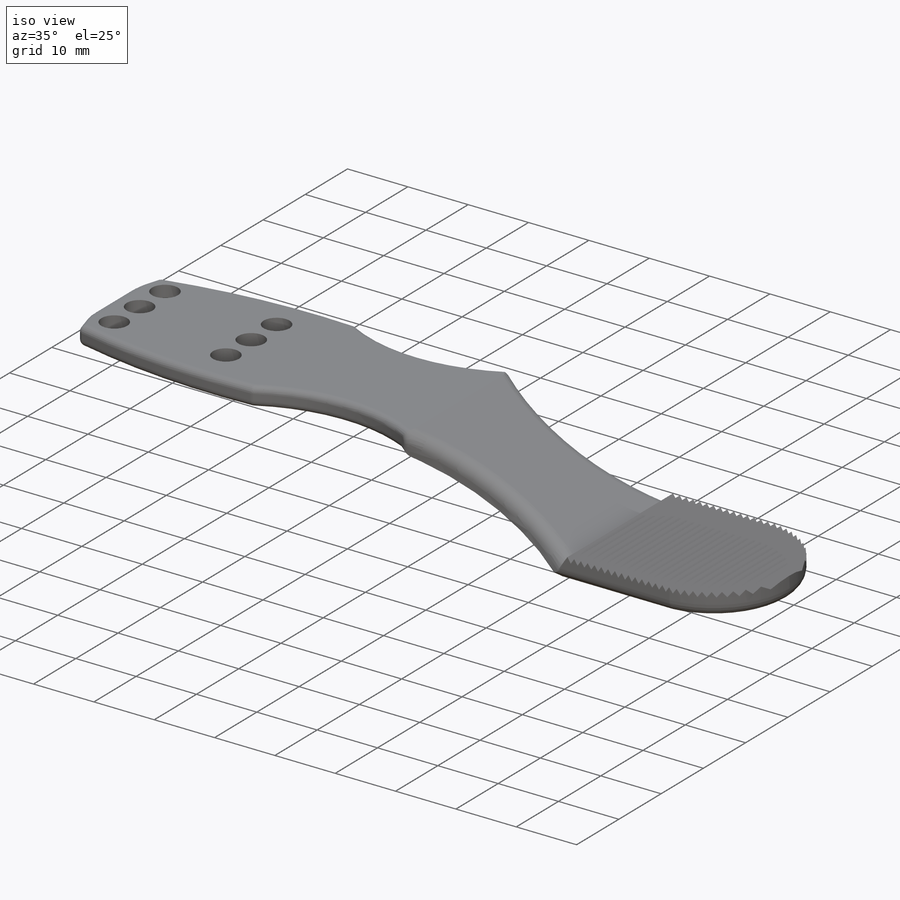
[diagram: iso view]
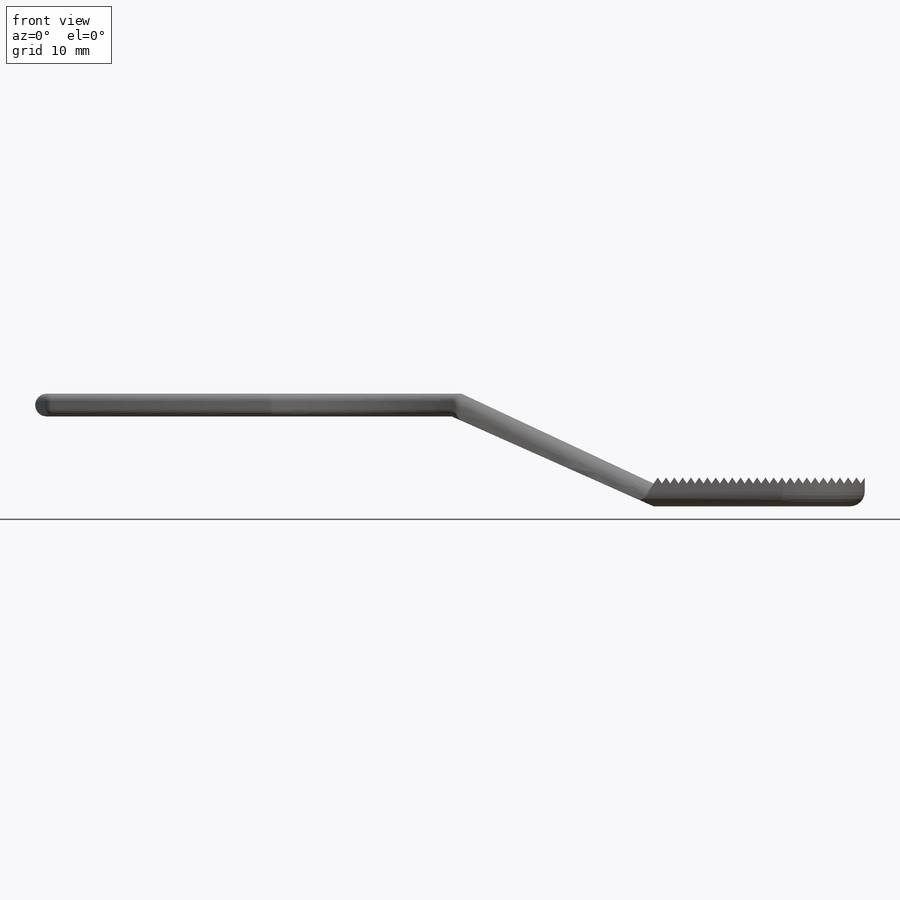
[diagram: front view]
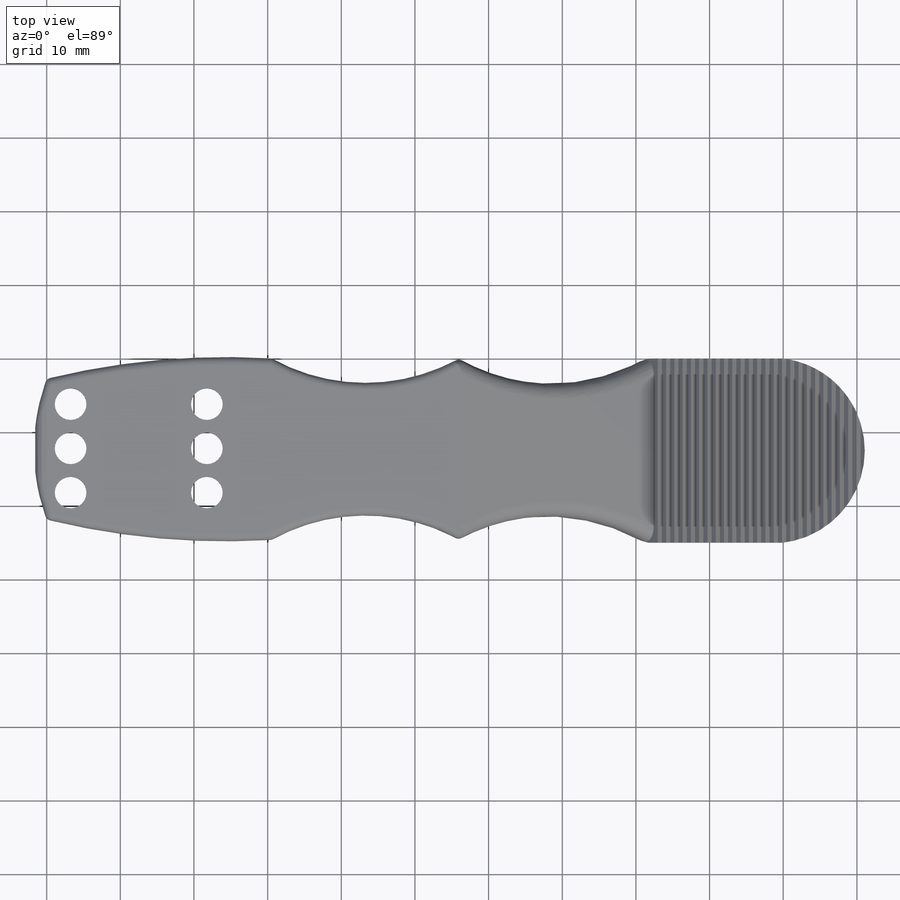
[diagram: top view]
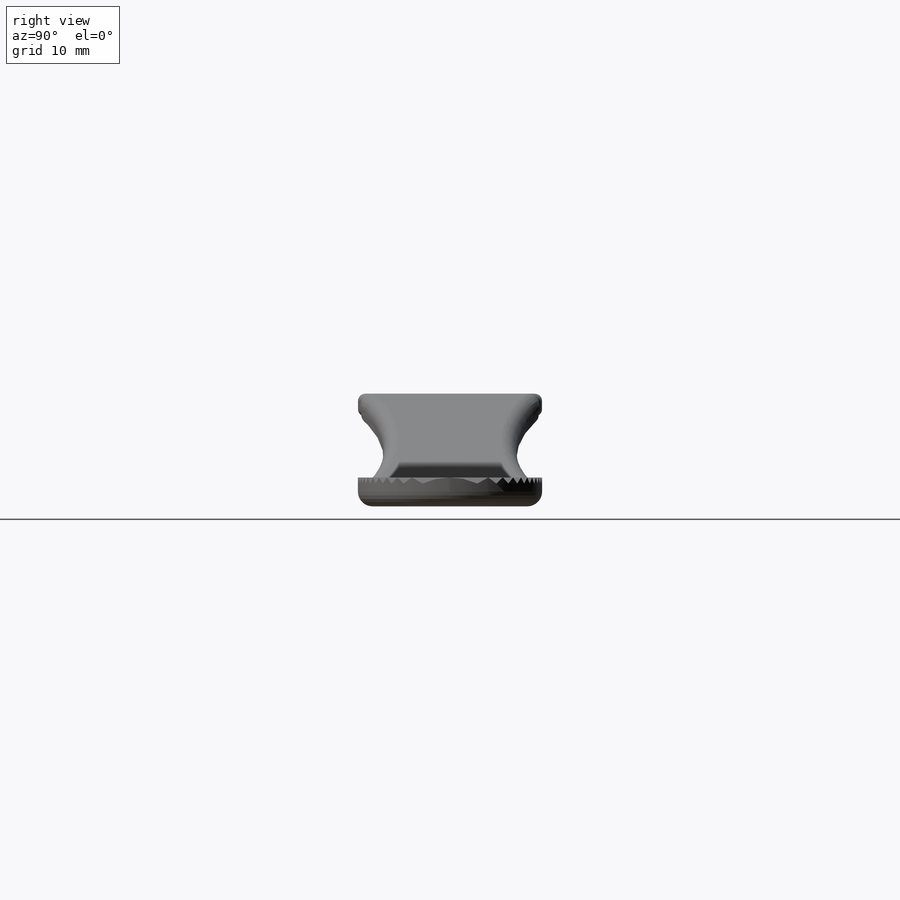
[diagram: right view]
SOLIDWORKS PART (.sldprt)
format: sldprt  version: not decoded by parser v0  size: 665,600 bytes
history: native  units: mm
features: sketch x7, fillet x7, cut_extrude x5, plane x3, extrude x2, material x1 (+9 scaffold rows collapsed)
feature tree (34):
  scaffold x9  (default folders/planes/origin — collapsed)
  material  "Material <sin especificar>"
  plane  "Alzado"
  plane  "Planta"
  plane  "Vista lateral"
  sketch  "Croquis3"  dims[c1.D5=1.55mm c1.D1=35.0mm c1.D2=30.0mm c1.D3=35.0mm c2.D3=156.0deg c2.D4=3.1mm c2.D5=3.1mm c2.D1=55.0mm c3.D5=~29.374223mm]
  extrude  "Saliente-Extruir1"  Depth=25mm
  sketch  "Croquis7"  dims[D1=3.5mm]
  cut_extrude  "Cortar-Extruir7"  Depth=22mm
  sketch  "Croquis9"  dims[c1.D1=~4.328296mm c1.D3=~11.381608mm c2.D1=3.5mm c2.D2=26.09mm c2.D3=~10.765709mm]
  sketch  "Croquis14"  dims[c1.D3=~1.861118mm c1.D5=2.15mm c2.D3=~7.553691mm c2.D5=2.585mm c2.D1=~13.515043mm c2.D2=~23.674508mm c3.D1=25.0mm c3.D2=18.0mm c3.D3=3.4mm c3.D4=3.04mm c3.D5=~3.127578mm c4.D3=3.25mm c4.D4=3.0mm c4.D5=3.25mm]
  cut_extrude  "Cortar-Extruir9"  [1 undecoded]
  cut_extrude  "Cortar-Extruir10"  [1 undecoded]
  sketch  "Croquis14<4>"  dims[D1=1.2mm]
  cut_extrude  "Cortar-Extruir11"  Depth=10mm
  sketch  "Croquis17"  dims[D1=~2.299782mm]
  extrude  "Saliente-Extruir3"  [1 undecoded]
  sketch  "Croquis18"  dims[D1=~24.455936mm]
  cut_extrude  "Cortar-Extruir14"  Depth=10mm
  fillet  "Redondeo8"  Radius=2mm
  fillet  "Redondeo17"  Radius=2mm
  fillet  "Redondeo19"  Radius=1mm
  fillet  "Redondeo20"  Radius=1mm
  fillet  "Redondeo21"  Radius=1mm
  fillet  "Redondeo22"  Radius=1mm
  fillet  "Redondeo25"  Radius=1mm
decode coverage: 18 of 21 modeling features carry decoded parameters
note: ~ marks probable driven/reference dimensions
note: 3 parameter values undecoded
summary: no parameter record found for 3 features
note: suppression state not decoded; provenance and decode notes live in map.json
